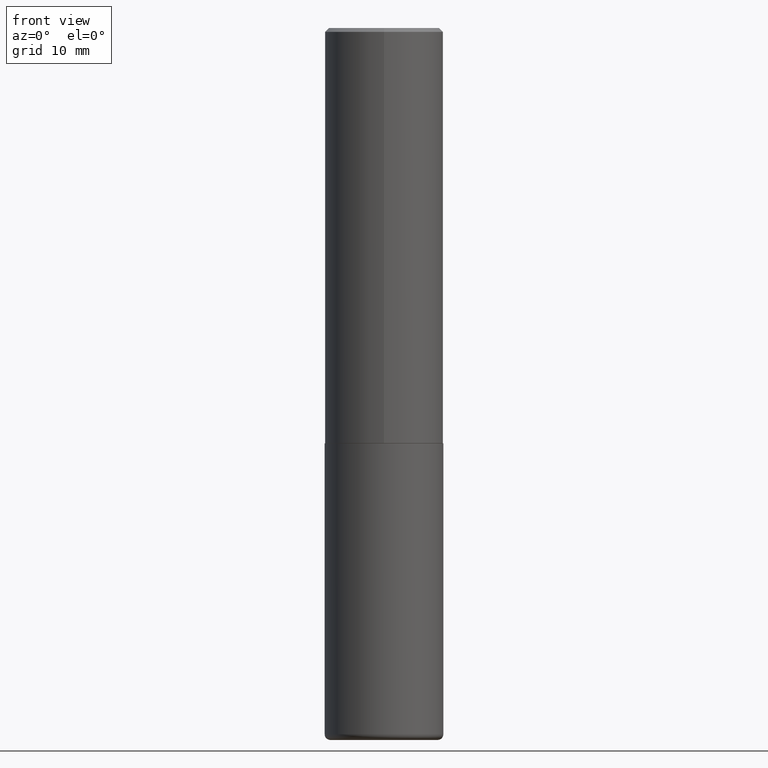
[diagram: clean part render]
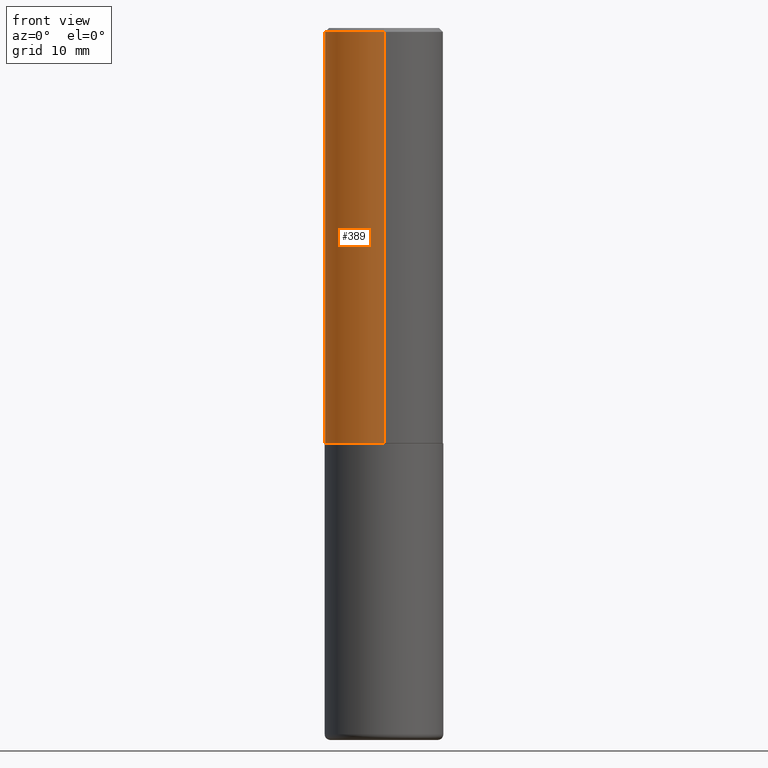
[diagram: same view with one face highlighted and labeled with its STEP entity id]
A machine part, front view. The second image highlights one B-rep face of the part: STEP entity #389.
In plain terms, the highlighted cylindrical surface (partial cylindrical patch) has radius 7.9375 mm, axis along (-0, 0, 1).
Its self-contained STEP definition (entity closure, byte-faithful):
#6 = CARTESIAN_POINT ( 'NONE',  ( 5.348352127477146811E-29, -7.632212748918013096E-15, -2.186500000000000110 ) ) ;
#9 = DIRECTION ( 'NONE',  ( -6.982962677686265922E-15, -1.000000000000000000, 3.496765431890253764E-15 ) ) ;
#10 = EDGE_CURVE ( 'NONE', #34, #105, #149, .T. ) ;
#16 = ORIENTED_EDGE ( 'NONE', *, *, #115, .T. ) ;
#24 = DIRECTION ( 'NONE',  ( -2.446079180186209356E-29, 3.490607248533278647E-15, 1.000000000000000000 ) ) ;
#34 = VERTEX_POINT ( 'NONE', #58 ) ;
#58 = CARTESIAN_POINT ( 'NONE',  ( 2.220446049250340691E-15, 0.3124999999999926170, -2.186500000000000998 ) ) ;
#84 = CARTESIAN_POINT ( 'NONE',  ( 0.000000000000000000, 0.000000000000000000, 0.000000000000000000 ) ) ;
#105 = VERTEX_POINT ( 'NONE', #296 ) ;
#107 = DIRECTION ( 'NONE',  ( -2.446079180186209356E-29, 3.490607248533278647E-15, 1.000000000000000000 ) ) ;
#109 = CARTESIAN_POINT ( 'NONE',  ( -2.143905624303602824E-15, -0.3125000000000000555, -0.01999999999999897693 ) ) ;
#115 = EDGE_CURVE ( 'NONE', #34, #245, #365, .T. ) ;
#131 = VECTOR ( 'NONE', #411, 39.37007874015748143 ) ;
#136 = DIRECTION ( 'NONE',  ( -2.446079180186209356E-29, 3.490607248533278647E-15, 1.000000000000000000 ) ) ;
#146 = CARTESIAN_POINT ( 'NONE',  ( 2.220446049250313475E-15, 0.3125000000000001665, -1.090814765166650021E-15 ) ) ;
#148 = FACE_OUTER_BOUND ( 'NONE', #344, .T. ) ;
#149 = LINE ( 'NONE', #146, #131 ) ;
#158 = AXIS2_PLACEMENT_3D ( 'NONE', #368, #24, #278 ) ;
#174 = ORIENTED_EDGE ( 'NONE', *, *, #191, .T. ) ;
#190 = LINE ( 'NONE', #295, #351 ) ;
#191 = EDGE_CURVE ( 'NONE', #245, #262, #190, .T. ) ;
#245 = VERTEX_POINT ( 'NONE', #403 ) ;
#249 = ORIENTED_EDGE ( 'NONE', *, *, #325, .F. ) ;
#262 = VERTEX_POINT ( 'NONE', #109 ) ;
#263 = AXIS2_PLACEMENT_3D ( 'NONE', #84, #410, #346 ) ;
#270 = AXIS2_PLACEMENT_3D ( 'NONE', #6, #107, #9 ) ;
#274 = CYLINDRICAL_SURFACE ( 'NONE', #263, 0.3125000000000001665 ) ;
#278 = DIRECTION ( 'NONE',  ( -6.982962677686265133E-15, -1.000000000000000000, 3.496765431890256920E-15 ) ) ;
#295 = CARTESIAN_POINT ( 'NONE',  ( -2.182175836776959136E-15, -0.3125000000000001665, 1.090814765166650021E-15 ) ) ;
#296 = CARTESIAN_POINT ( 'NONE',  ( 2.182175836776958741E-15, 0.3124999999999999445, -0.02000000000000116268 ) ) ;
#325 = EDGE_CURVE ( 'NONE', #105, #262, #343, .T. ) ;
#343 = CIRCLE ( 'NONE', #158, 0.3125000000000000000 ) ;
#344 = EDGE_LOOP ( 'NONE', ( #375, #16, #174, #249 ) ) ;
#346 = DIRECTION ( 'NONE',  ( -6.982962677686265133E-15, -1.000000000000000000, 3.490607248533278253E-15 ) ) ;
#351 = VECTOR ( 'NONE', #136, 39.37007874015748143 ) ;
#365 = CIRCLE ( 'NONE', #270, 0.3125000000000002776 ) ;
#368 = CARTESIAN_POINT ( 'NONE',  ( 4.892158360372435246E-31, -6.981214497066581551E-17, -0.02000000000000006981 ) ) ;
#375 = ORIENTED_EDGE ( 'NONE', *, *, #10, .F. ) ;
#389 = ADVANCED_FACE ( 'NONE', ( #148 ), #274, .T. ) ;
#403 = CARTESIAN_POINT ( 'NONE',  ( -2.182175836776906677E-15, -0.3125000000000079381, -2.186499999999998778 ) ) ;
#410 = DIRECTION ( 'NONE',  ( -2.446079180186209356E-29, 3.490607248533278647E-15, 1.000000000000000000 ) ) ;
#411 = DIRECTION ( 'NONE',  ( -2.446079180186209356E-29, 3.490607248533278647E-15, 1.000000000000000000 ) ) ;